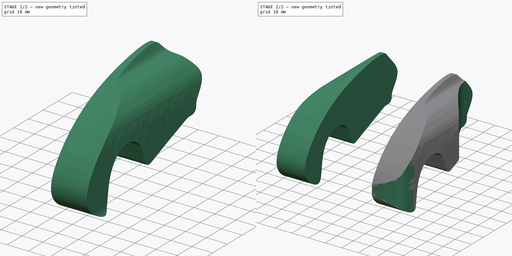
[diagram: build sequence overview — one tinted view per stage of 2, left to right]
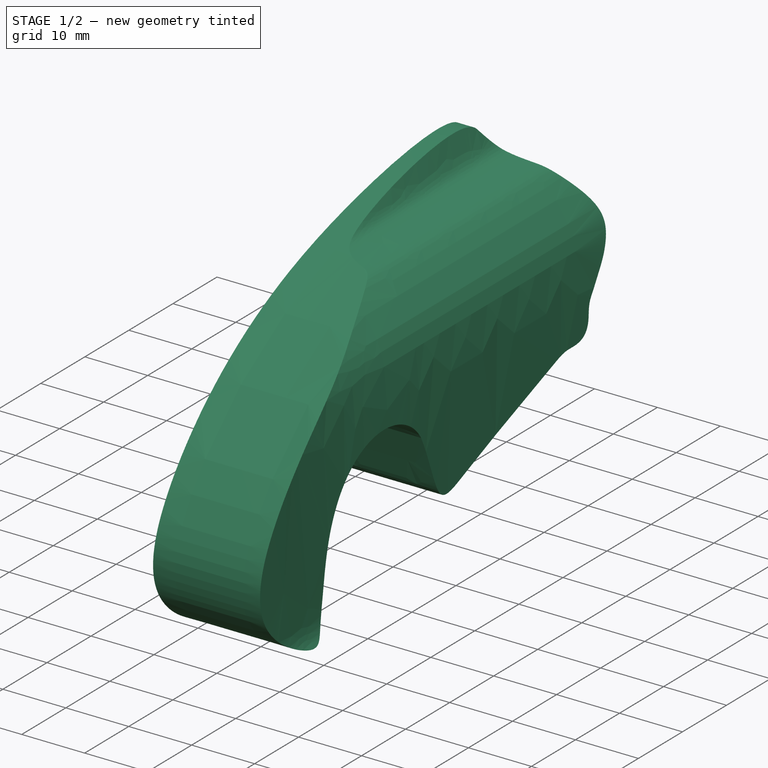
[diagram: stage 1 of 2 — iso view after this stage's code; geometry added in this stage tinted green]
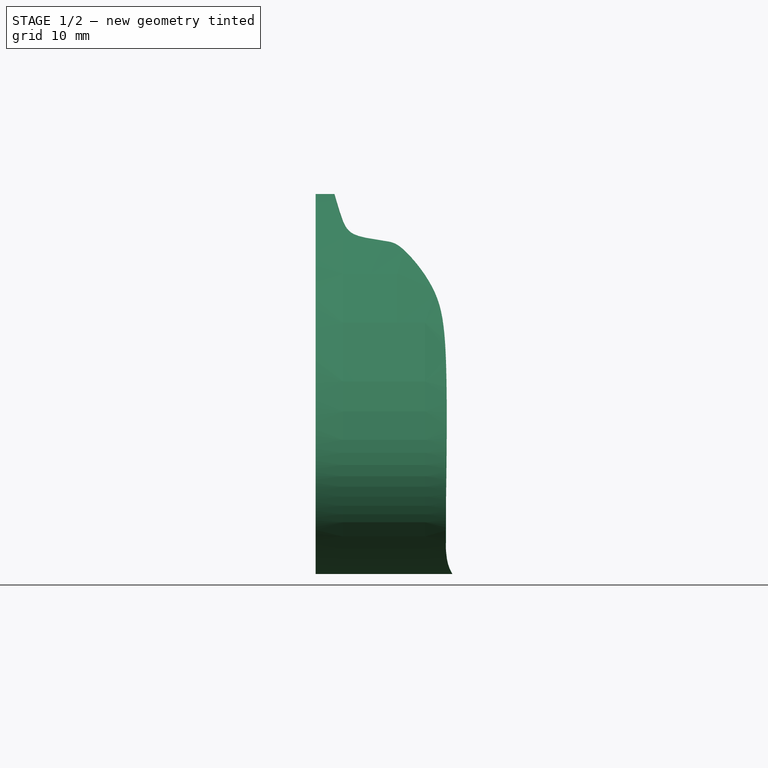
[diagram: stage 1 of 2 — front view after this stage's code; geometry added in this stage tinted green]
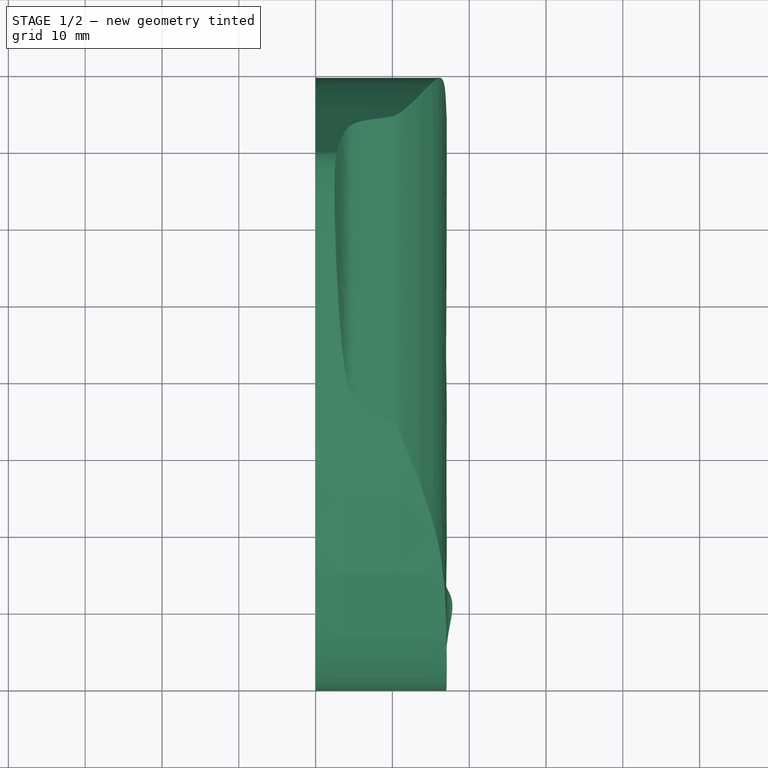
[diagram: stage 1 of 2 — top view after this stage's code; geometry added in this stage tinted green]
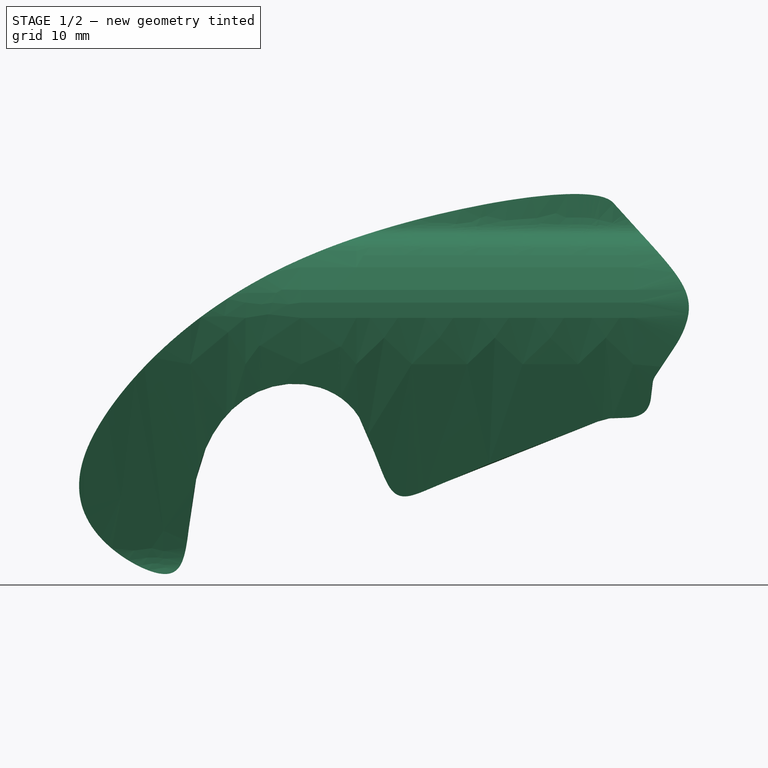
[diagram: stage 1 of 2 — right view after this stage's code; geometry added in this stage tinted green]
FCSTD DOCUMENT  (FreeCAD 2021.0205R23662 +3201 (Git))
Label: tinytrax_03
License: All rights reserved
LicenseURL: http://en.wikipedia.org/wiki/All_rights_reserved
objects: Image::ImagePlane×5, Sketcher::SketchObject×5, PartDesign::Body×3, App::MeasureDistance×2, PartDesign::Pocket×2, PartDesign::Plane×1, PartDesign::Pad×1, PartDesign::Mirrored×1
note: 20 computed .brp shape members not serialized (recipe doc carries the construction recipe); baked Part::Feature solids carry a one-line shape summary decoded from their .brp

FEATURE [PartDesign::Body] Body
  AutoGroupSolids = false
  ExportMode = 0
  Origin = -> Origin
  _GroupVersion = 1
FEATURE [Image::ImagePlane] ImagePlane
  Placement = pos=(0,0,0) rot=(-1,0,0;4.71239rad)
  XSize = 722
  YSize = 516
FEATURE [Image::ImagePlane] ImagePlane001
  Placement = pos=(0,0,0) rot=(-0.57735,0.57735,0.57735;4.18879rad)
  XSize = 722
  YSize = 516
FEATURE [Sketcher::SketchObject] Sketch
  FullyConstrained = false
  MapMode = 5
  Placement = pos=(0,0,0) rot=(0.57735,0.57735,0.57735;2.0944rad)
  Support = -> [YZ_Plane001]
  sketch-geometry (41):
    g0-g20: Circle [constr] x21 (B-spline internal-alignment scaffolding for g21; pole/knot coordinates omitted)
    g21: BSplineCurve PolesCount=21 KnotsCount=19 Degree=3 IsPeriodic=0
    g22-g40: GeomPoint [constr] x19 (B-spline internal-alignment scaffolding for g21; pole/knot coordinates omitted)
  constraints (7):
    c: Weight(g0) = 1
    c: Equal(g0, g1-g19) x19
    c: PointOnObject(g21,g-1)
    c: Equal(g0,g20)
    c: Coincident(g20,g0)
    c: InternalAlignment(g0-g20 -> g21) x21
    c: InternalAlignment(g22-g40 -> g21) x19
FEATURE [Sketcher::SketchObject] Sketch001
  FullyConstrained = false
  MapMode = 5
  Placement = pos=(0,0,0) rot=(1,0,0;1.5708rad)
  Support = -> [XZ_Plane]
  sketch-geometry (24):
    g0-g10: Circle [constr] x11 (B-spline internal-alignment scaffolding for g11; pole/knot coordinates omitted)
    g11: BSplineCurve PolesCount=13 KnotsCount=10 Degree=3 IsPeriodic=0
    g12-g21: GeomPoint [constr] x10 (B-spline internal-alignment scaffolding for g11; pole/knot coordinates omitted)
    g22: Circle [constr] CenterX=-144.065 CenterY=-179.046 CenterZ=0 NormalX=0 NormalY=0 NormalZ=1 AngleXU=0 Radius=1
    g23: Circle [constr] CenterX=-67.1367 CenterY=-179.697 CenterZ=0 NormalX=0 NormalY=0 NormalZ=1 AngleXU=0 Radius=1
  constraints (10):
    c: Weight(g0) = 1
    c: Equal(g0, g1-g4) x4
    c: PointOnObject(g4,g3)
    c: Equal(g0, g5-g10) x6
    c: Coincident(g10,g0)
    c: InternalAlignment(g0-g10 -> g11) x11
    c: InternalAlignment(g12-g22 -> g11) x11
    c: Equal(g22,g0)
    c: InternalAlignment(g23,g11)
    c: Equal(g23,g0)
FEATURE [PartDesign::Body] Body001  label="OLDBody001"
  AutoGroupSolids = false
  ExportMode = 0
  Group = -> [Sketch,Sketch001]
  Origin = -> Origin001
  _ExportChildren = -> [Sketch,Sketch001]
  _GroupVersion = 1
FEATURE [Image::ImagePlane] ImagePlane002  label="ImageFRONT"
  Placement = pos=(0,0,0) rot=(-1,0,0;4.71239rad)
  XSize = 81
  YSize = 137
FEATURE [Image::ImagePlane] ImagePlane003  label="ImageSIDE"
  Placement = pos=(0,0,0) rot=(0.57735,0.57735,0.57735;2.0944rad)
  XSize = 129
  YSize = 137
FEATURE [Image::ImagePlane] ImagePlane004  label="ImageTOP"
  XSize = 77
  YSize = 113
FEATURE [PartDesign::Plane] DatumPlane
  AttachmentOffset = pos=(0,0,20) rot=(0,0,1;0rad)
  Length = 79.0134
  MapMode = 5
  MinimumLength = 10
  MinimumWidth = 10
  Placement = pos=(20,-4.4e-15,4.4e-15) rot=(0.57735,0.57735,0.57735;2.0944rad)
  ResizeMode = 0
  Support = -> [YZ_Plane002]
  Width = 53.2158
FEATURE [Sketcher::SketchObject] Sketch002
  FullyConstrained = false
  MapMode = 5
  Placement = pos=(20,-4.4e-15,4.4e-15) rot=(0.57735,0.57735,0.57735;2.0944rad)
  Support = -> [DatumPlane]
  sketch-geometry (46):
    g0-g9: Circle [constr] x10 (B-spline internal-alignment scaffolding for g10; pole/knot coordinates omitted)
    g10: BSplineCurve PolesCount=17 KnotsCount=8 Degree=4 IsPeriodic=0
    g11-g18: GeomPoint [constr] x8 (B-spline internal-alignment scaffolding for g10; pole/knot coordinates omitted)
    g19-g25: Circle [constr] x7 (B-spline internal-alignment scaffolding for g10; pole/knot coordinates omitted)
    g26-g33: Circle [constr] x8 (B-spline internal-alignment scaffolding for g34; pole/knot coordinates omitted)
    g34: BSplineCurve PolesCount=13 KnotsCount=6 Degree=4 IsPeriodic=0
    g35-g40: GeomPoint [constr] x6 (B-spline internal-alignment scaffolding for g34; pole/knot coordinates omitted)
    g41-g45: Circle [constr] x5 (B-spline internal-alignment scaffolding for g34; pole/knot coordinates omitted)
  constraints (32):
    c: Weight(g0) = 1
    c: Equal(g0, g1-g9) x9
    c: InternalAlignment(g0-g9 -> g10) x10
    c: InternalAlignment(g11-g19 -> g10) x9
    c: Equal(g19,g0)
    c: InternalAlignment(g20,g10)
    c: Equal(g20,g0)
    c: InternalAlignment(g21,g10)
    c: Equal(g21,g0)
    c: InternalAlignment(g22,g10)
    c: Equal(g22,g0)
    c: InternalAlignment(g23,g10)
    c: Equal(g23,g0)
    c: InternalAlignment(g24,g10)
    c: Equal(g24,g0)
    c: InternalAlignment(g25,g10)
    c: Equal(g25,g0)
    c: Coincident(g34,g10)
    c: Weight(g26) = 1
    c: Equal(g26, g27-g33) x7
    c: Coincident(g34,g10)
    c: InternalAlignment(g26-g33 -> g34) x8
    c: InternalAlignment(g35-g41 -> g34) x7
    c: Equal(g41,g26)
    c: InternalAlignment(g42,g34)
    c: Equal(g42,g26)
    c: InternalAlignment(g43,g34)
    c: Equal(g43,g26)
    c: InternalAlignment(g44,g34)
    c: Equal(g44,g26)
    c: InternalAlignment(g45,g34)
    c: Equal(g45,g26)
FEATURE [App::MeasureDistance] Distance  label="Distance: 18.19 mm"
  Distance = 18.1938
  P1 = (-19.877,4.47684e-06,-37.5544)
  P2 = (-38.0702,4.45877e-06,-37.4028)
FEATURE [PartDesign::Pad] Pad
  ClaimChildren = false
  Direction = (1,1,1)
  Fit = 0
  FitJoin = 0
  InnerFit = 0
  InnerFitJoin = 0
  InnerTaperAngle = 0
  InnerTaperAngleRev = 0
  Length = 18
  Length2 = 100
  NewSolid = false
  Placement = pos=(20,-4.4e-15,4.4e-15) rot=(0.57735,0.57735,0.57735;2.0944rad)
  Profile = -> Sketch002
  Suppress = false
  Type = 0
FEATURE [App::MeasureDistance] Distance001  label="Distance: 39.31 mm"
  Distance = 39.3136
  P1 = (-19.7207,2.68584e-06,-22.5304)
  P2 = (19.5923,2.71155e-06,-22.7461)
FEATURE [Sketcher::SketchObject] Sketch003
  FullyConstrained = false
  MapMode = 5
  Placement = pos=(0,0,0) rot=(1,0,0;1.5708rad)
  Support = -> [XZ_Plane002]
  sketch-geometry (27):
    g0-g13: Circle [constr] x14 (B-spline internal-alignment scaffolding for g14; pole/knot coordinates omitted)
    g14: BSplineCurve PolesCount=14 KnotsCount=12 Degree=3 IsPeriodic=0
    g15-g26: GeomPoint [constr] x12 (B-spline internal-alignment scaffolding for g14; pole/knot coordinates omitted)
  constraints (5):
    c: Weight(g0) = 1
    c: Equal(g0, g1-g13) x13
    c: Coincident(g13,g0)
    c: InternalAlignment(g0-g13 -> g14) x14
    c: InternalAlignment(g15-g26 -> g14) x12
FEATURE [PartDesign::Pocket] Pocket
  BaseFeature = -> Pad
  ClaimChildren = false
  Fit = 0
  FitJoin = 0
  InnerFit = 0
  InnerFitJoin = 0
  InnerTaperAngle = 0
  InnerTaperAngleRev = 0
  Length = 5
  Length2 = 100
  Midplane = true
  NewSolid = false
  Placement = pos=(20,-4.4e-15,4.4e-15) rot=(0.57735,0.57735,0.57735;2.0944rad)
  Profile = -> Sketch003
  Suppress = false
  Type = 1
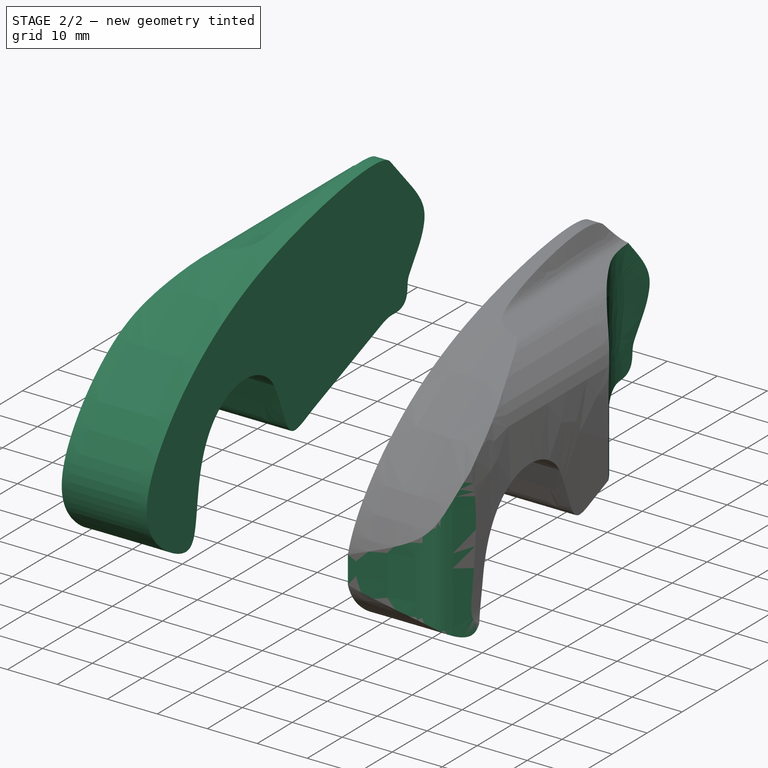
[diagram: stage 2 of 2 — iso view after this stage's code; geometry added in this stage tinted green]
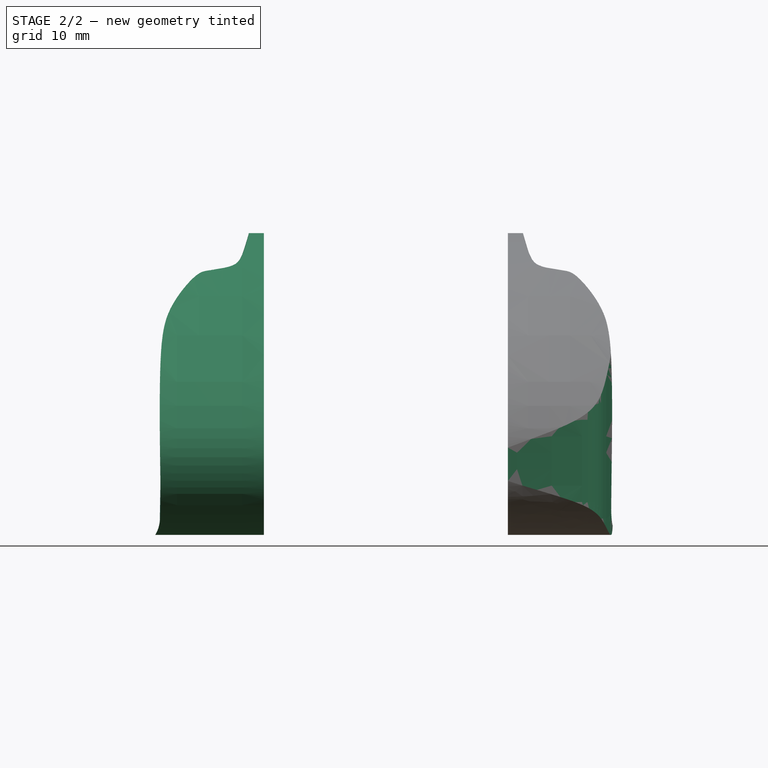
[diagram: stage 2 of 2 — front view after this stage's code; geometry added in this stage tinted green]
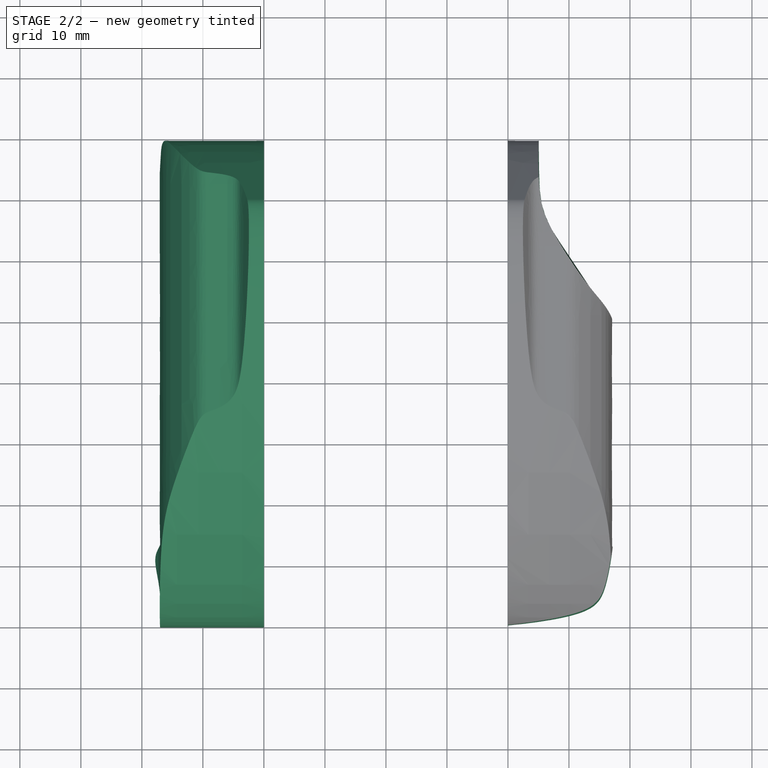
[diagram: stage 2 of 2 — top view after this stage's code; geometry added in this stage tinted green]
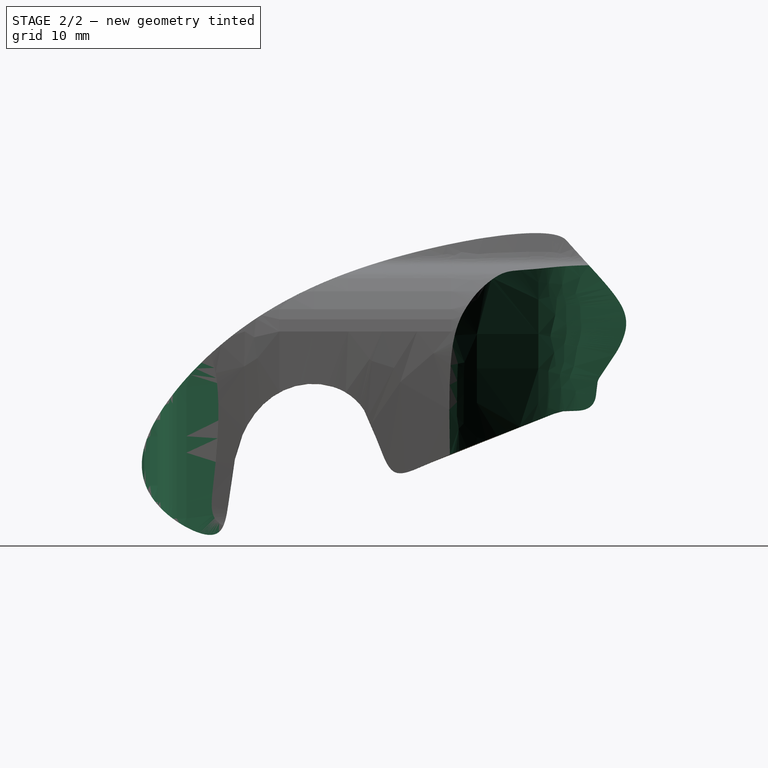
[diagram: stage 2 of 2 — right view after this stage's code; geometry added in this stage tinted green]
FEATURE [Sketcher::SketchObject] Sketch004
  FullyConstrained = false
  MapMode = 5
  Support = -> [XY_Plane002]
  sketch-geometry (28):
    g0-g13: Circle [constr] x14 (B-spline internal-alignment scaffolding for g14; pole/knot coordinates omitted)
    g14: BSplineCurve PolesCount=14 KnotsCount=12 Degree=3 IsPeriodic=0
    g15-g26: GeomPoint [constr] x12 (B-spline internal-alignment scaffolding for g14; pole/knot coordinates omitted)
    g27: LineSegment StartX=26.0957 StartY=35.5671 StartZ=0 EndX=25.2808 EndY=34.9874 EndZ=0
  constraints (7):
    c: Weight(g0) = 1
    c: Equal(g0, g1-g13) x13
    c: PointOnObject(g14,g0)
    c: InternalAlignment(g0-g13 -> g14) x14
    c: InternalAlignment(g15-g26 -> g14) x12
    c: Coincident(g27,g14)
    c: Coincident(g27,g14)
FEATURE [PartDesign::Pocket] Pocket001
  BaseFeature = -> Pocket
  ClaimChildren = false
  Fit = 0
  FitJoin = 0
  InnerFit = 0
  InnerFitJoin = 0
  InnerTaperAngle = 0
  InnerTaperAngleRev = 0
  Length = 5
  Length2 = 100
  Midplane = true
  NewSolid = false
  Placement = pos=(20,-4.4e-15,4.4e-15) rot=(0.57735,0.57735,0.57735;2.0944rad)
  Profile = -> Sketch004
  Suppress = false
  Type = 1
FEATURE [PartDesign::Mirrored] Mirrored
  BaseFeature = -> Pocket001
  CopyShape = false
  MirrorPlane = -> YZ_Plane002
  NewSolid = false
  OriginalSubs = -> [Pad,Pocket]
  Originals = -> [Pad,Pocket]
  Placement = pos=(20,-4.4e-15,4.4e-15) rot=(0.57735,0.57735,0.57735;2.0944rad)
  SubTransform = true
  Suppress = false
FEATURE [PartDesign::Body] Body002
  AutoGroupSolids = false
  ExportMode = 0
  Group = -> [DatumPlane,Sketch002,Pad,Sketch003,Pocket,Sketch004,Pocket001,Mirrored]
  Origin = -> Origin002
  Tip = -> Pocket001
  _ExportChildren = -> [DatumPlane,Pad,Pocket,Pocket001,Mirrored]
  _GroupVersion = 1
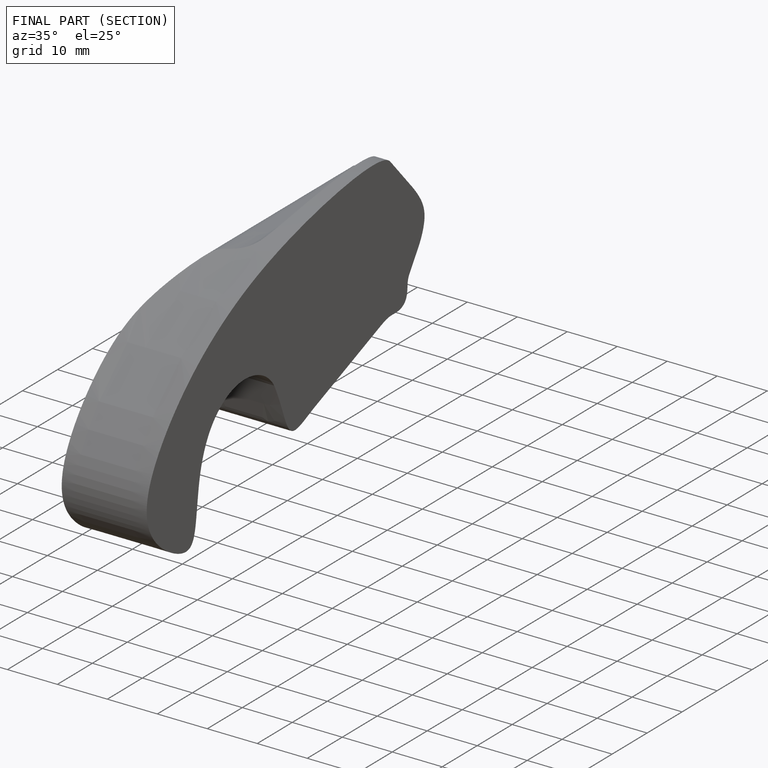
[diagram: finished part — half-section view (interior)]
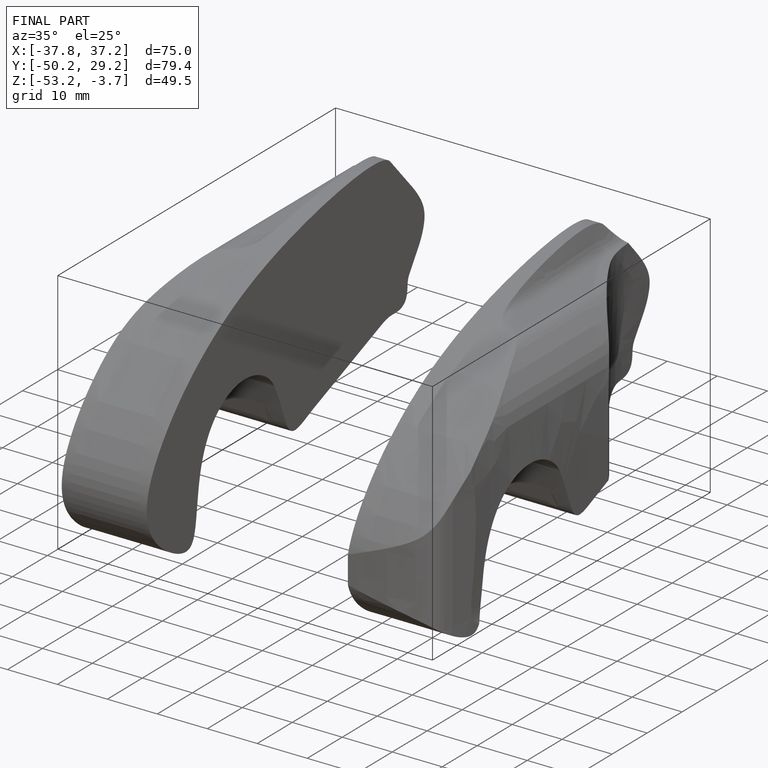
[diagram: finished part — iso view with bounding-box wireframe]
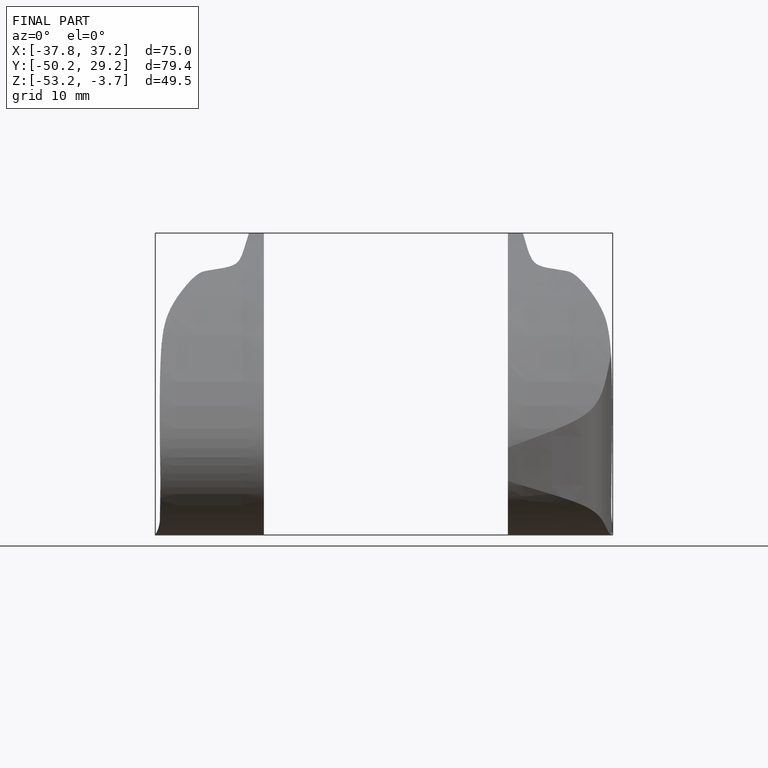
[diagram: finished part — front view with bounding-box wireframe]
